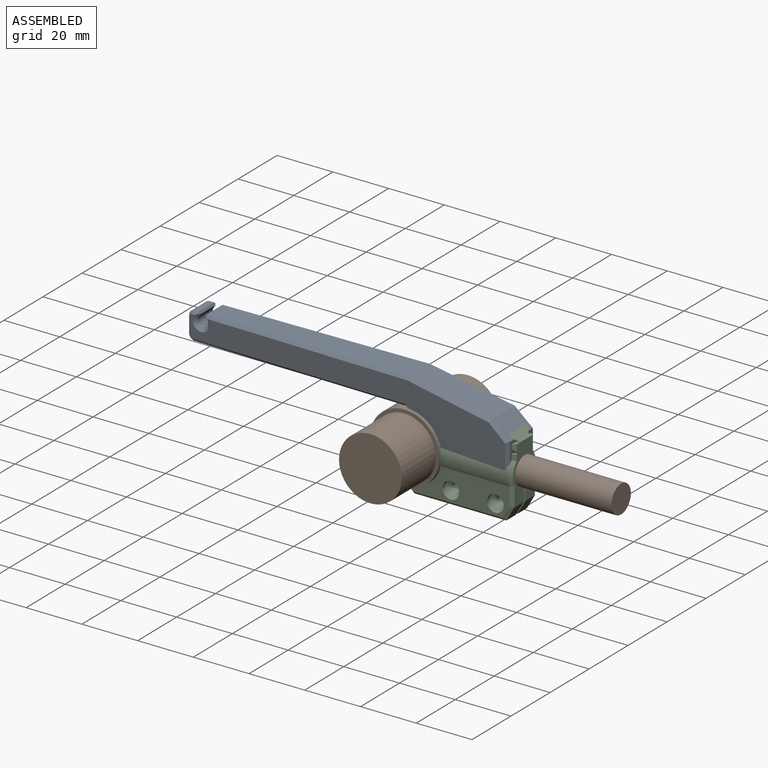
[diagram: assembled view]
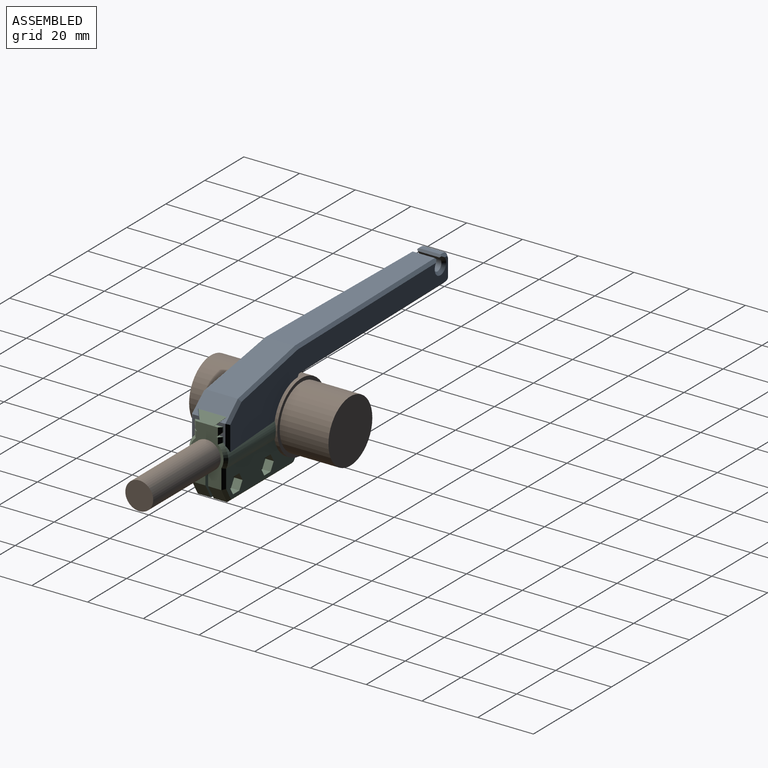
[diagram: assembled view, second angle]
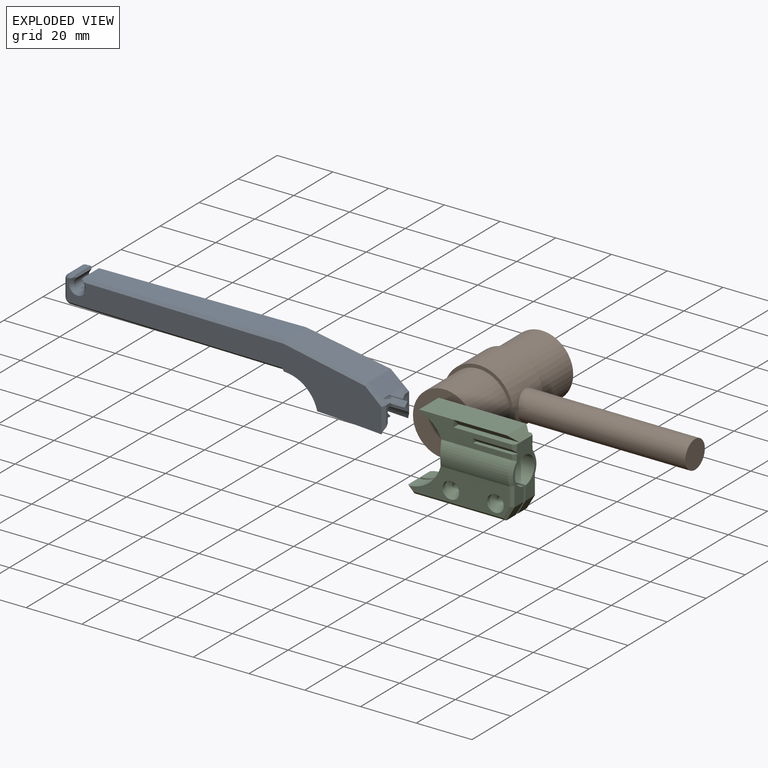
[diagram: exploded view]
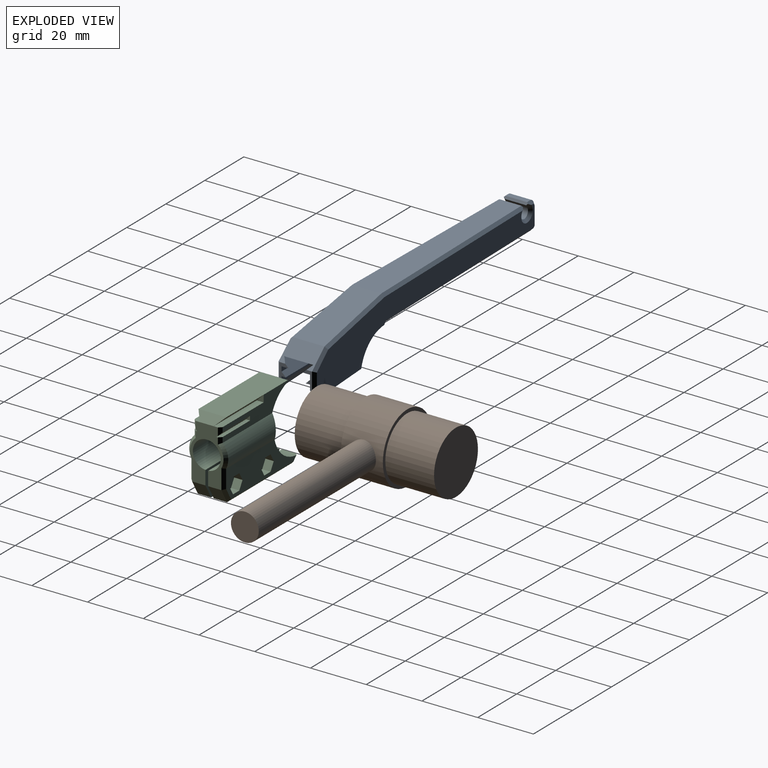
[diagram: exploded view, second angle]
ASSEMBLY  parts=3 mates=3
PART A: 65 faces, bbox 116.7x20.8x13.9 mm
  f0: plane 13.41x1.5mm, normal (0,1,0), area 20.1mm2, adj f1,f4,f21,f63
  f1: plane 13.41x1.5mm, normal (0,-0.71,0.71), area 28.5mm2, adj f0,f4,f21,f63
  f2: plane 13.41x1.5mm, normal (0,-0.71,-0.71), area 28.5mm2, adj f3,f12,f19,f64
  f3: plane 13.41x1.5mm, normal (0,1,0), area 20.1mm2, adj f2,f12,f19,f64
  f4: plane 36.5x7.66mm, normal (0,0,1), area 145.7mm2, adj f0,f1,f7,f11,f13,f14,f15,f16
  f5: plane 114.56x19.72mm, normal (-0.02,0,-1), area 1051.8mm2, adj f11,f13,f25,f47,f48,f49,f50,f51
  f6: plane 73.5x10.48mm, normal (0,-1,0), area 675.7mm2, adj f33,f34,f37,f38,f49,f50
  f7: plane 11.73x6.5mm, normal (0.66,-0.75,0), area 80.8mm2, adj f4,f12,f15,f16,f17,f19,f21,f34
  f8: plane 114.56x19.72mm, normal (-0.02,0,1), area 1051.8mm2, adj f10,f20,f24,f35,f36,f37,f38,f39
  f9: plane 7.81x1.5mm, normal (0,-1,0), area 11.7mm2, adj f27,f32,f42,f54
  f10: plane 1.14x0.01mm, normal (-1,0,0), area 0mm2, adj f8,f16,f19,f59,f62
  f11: plane 1.14x0.01mm, normal (-1,0,0), area 0mm2, adj f4,f5,f16,f60,f61
  f12: plane 7.19x3.26mm, normal (1,0,0), area 8.5mm2, adj f2,f3,f7,f17,f18,f19,f20,f35
  f13: cylinder r=7.1mm len=25.02mm, axis (-1,0,0), area 72.2mm2, adj f4,f5,f21,f25,f47
  f14: plane 20.4x2.5mm, normal (0,1,0), area 51mm2, adj f4,f15,f21,f23
  f15: plane 20.4x2.5mm, normal (0,-0.71,0.71), area 70.8mm2, adj f4,f7,f14,f21,f23
  f16: plane 112.89x12.46mm, normal (0,1,0), area 1067.5mm2, adj f4,f7,f10,f11,f19,f28,f46,f58
  f17: plane 20.4x2.5mm, normal (0,-0.71,-0.71), area 70.8mm2, adj f7,f12,f18,f19,f22
  f18: plane 20.4x2.5mm, normal (0,1,0), area 51mm2, adj f12,f17,f19,f22
  f19: plane 36.5x7.66mm, normal (0,0,-1), area 145.7mm2, adj f2,f3,f7,f10,f12,f16,f17,f18
  f20: cylinder r=7.1mm len=25.02mm, axis (-1,0,0), area 72.2mm2, adj f8,f12,f19,f24,f35
  f21: plane 7.19x3.26mm, normal (1,0,0), area 8.5mm2, adj f0,f1,f4,f7,f13,f14,f15,f47
  f22: plane 2.5x2.5mm, normal (-1,0,0), area 3.1mm2, adj f17,f18,f19
  f23: plane 2.5x2.5mm, normal (-1,0,0), area 3.1mm2, adj f4,f14,f15
  f24: cylinder r=12.5mm len=12.04mm, axis (0,0,-1), area 19.2mm2, adj f8,f19,f20,f62
  f25: cylinder r=12.5mm len=12.04mm, axis (0,0,-1), area 19.2mm2, adj f4,f5,f13,f61
  f26: plane 7.72x5.9mm, normal (-1,0,0), area 45.5mm2, adj f27,f28,f44,f56
  f27: cylinder r=2mm len=7.75mm, axis (0,0,1), area 24.3mm2, adj f9,f26,f43,f55
  f28: cylinder r=2mm len=7.75mm, axis (0,0,-1), area 24.3mm2, adj f16,f26,f45,f57
  f29: plane 7.95x0.97mm, normal (-0.84,0.55,0), area 9.2mm2, adj f31,f33,f39,f51
  f30: plane 7.79x0.97mm, normal (0.84,0.55,0), area 9mm2, adj f31,f32,f41,f53
  f31: cylinder r=2mm len=7.95mm, axis (0,0,-1), area 67.5mm2, adj f29,f30,f40,f52
  f32: plane 8.64x0.84mm, normal (0.88,-0.48,0), area 7.8mm2, adj f9,f30,f41,f42,f53,f54
  f33: plane 8.75x0.84mm, normal (-0.88,-0.48,0), area 8mm2, adj f6,f29,f38,f39,f50,f51
  f34: plane 30x11.52mm, normal (0.19,-0.98,0), area 335.6mm2, adj f6,f7,f36,f37,f48,f49
  f35: plane 9.55x1.2mm, normal (0.7,0,0.71), area 11.3mm2, adj f7,f8,f12,f20,f36
  f36: plane 6.96x6.11mm, normal (0.45,-0.54,0.71), area 11.7mm2, adj f7,f8,f34,f35,f37
  f37: plane 30.1x6.58mm, normal (0.12,-0.7,0.71), area 43mm2, adj f6,f8,f34,f36,f38
  f38: plane 73.71x2.28mm, normal (-0.01,-0.71,0.71), area 103.7mm2, adj f6,f8,f33,f37,f39
  f39: plane 1.45x1.38mm, normal (-0.6,0.38,0.7), area 1.4mm2, adj f8,f29,f33,f38,f40
  f40: bspline ~6.04x4.64mm, area 15.2mm2, adj f8,f31,f39,f41
  f41: plane 1.49x1.4mm, normal (0.58,0.39,0.71), area 1.5mm2, adj f8,f30,f32,f40,f42
  f42: plane 1.74x1.01mm, normal (-0.01,-0.71,0.71), area 1.9mm2, adj f8,f9,f32,f41,f43
  f43: bspline ~2x2mm, area 3.3mm2, adj f8,f27,f42,f44
  f44: plane 5.9x1mm, normal (-0.71,0,0.7), area 8.3mm2, adj f8,f26,f43,f45
  f45: bspline ~2x2mm, area 3.3mm2, adj f8,f28,f44,f46
  f46: plane 77.32x2.35mm, normal (-0.01,0.71,0.71), area 109.3mm2, adj f8,f16,f45,f59
  f47: plane 9.55x1.2mm, normal (0.7,0,-0.71), area 11.3mm2, adj f5,f7,f13,f21,f48
  f48: plane 6.96x6.11mm, normal (0.45,-0.54,-0.71), area 11.7mm2, adj f5,f7,f34,f47,f49
  f49: plane 30.1x6.58mm, normal (0.12,-0.7,-0.71), area 43mm2, adj f5,f6,f34,f48,f50
  f50: plane 73.71x2.28mm, normal (-0.01,-0.71,-0.71), area 103.7mm2, adj f5,f6,f33,f49,f51
  f51: plane 1.45x1.38mm, normal (-0.6,0.38,-0.7), area 1.4mm2, adj f5,f29,f33,f50,f52
  f52: bspline ~6.04x4.64mm, area 15.2mm2, adj f5,f31,f51,f53
  f53: plane 1.49x1.4mm, normal (0.58,0.39,-0.71), area 1.5mm2, adj f5,f30,f32,f52,f54
  f54: plane 1.74x1.01mm, normal (-0.01,-0.71,-0.71), area 1.9mm2, adj f5,f9,f32,f53,f55
  f55: bspline ~2x2mm, area 3.3mm2, adj f5,f27,f54,f56
  f56: plane 5.9x1mm, normal (-0.71,0,-0.7), area 8.3mm2, adj f5,f26,f55,f57
  f57: bspline ~2x2mm, area 3.3mm2, adj f5,f28,f56,f58
  f58: plane 77.32x2.35mm, normal (-0.01,0.71,-0.71), area 109.3mm2, adj f5,f16,f57,f60
  f59: plane 1.01x1mm, normal (-0.71,0.5,0.5), area 0.7mm2, adj f8,f10,f16,f46
  f60: plane 1.01x1mm, normal (-0.71,0.5,-0.5), area 0.7mm2, adj f5,f11,f16,f58
  f61: plane 1.14x0.1mm, normal (-0.71,0.7,0), area 0.2mm2, adj f4,f5,f11,f25
  f62: plane 1.14x0.1mm, normal (-0.71,0.7,0), area 0.2mm2, adj f8,f10,f19,f24
  f63: plane 1.5x1.5mm, normal (-1,0,0), area 1.1mm2, adj f0,f1,f4
  f64: plane 1.5x1.5mm, normal (-1,0,0), area 1.1mm2, adj f2,f3,f19
PART B: 9 faces, bbox 85x25x50 mm
  f0: cylinder r=12.5mm len=25mm, axis (0,0,-1), area 1097.8mm2, adj f1,f2,f7
  f1: plane 25x25mm, normal (0,0,1), area 93.3mm2, adj f0,f5
  f2: plane 25x25mm, normal (0,0,-1), area 93.3mm2, adj f0,f4
  f3: plane 22.5x22.5mm, normal (0,0,-1), area 397.6mm2, adj f4
  f4: cylinder r=11.25mm len=22.5mm, axis (0,0,-1), area 1237mm2, adj f2,f3
  f5: cylinder r=11.25mm len=22.5mm, axis (0,0,-1), area 1237mm2, adj f1,f6
  f6: plane 22.5x22.5mm, normal (0,0,1), area 397.6mm2, adj f5
  f7: cylinder r=5mm len=61.04mm, axis (-1,0,0), area 1901.2mm2, adj f0,f8
  f8: plane 10x10mm, normal (1,0,0), area 78.5mm2, adj f7
PART C: 70 faces, bbox 37.9x27.5x14 mm
  f0: plane 20x12mm, normal (1,0,0), area 116.5mm2, adj f2,f3,f4,f11,f18,f22,f25,f29
  f1: plane 33.39x7.6mm, normal (0,0,1), area 143.2mm2, adj f2,f13,f16,f21,f25,f27,f31,f57
  f2: plane 2.35x1.03mm, normal (0.71,0,0.71), area 3mm2, adj f0,f1,f58,f68
  f3: plane 2.7x1mm, normal (0.71,0,-0.71), area 3.1mm2, adj f0,f15,f29,f64
  f4: plane 2.35x1.03mm, normal (0.71,0,-0.71), area 3mm2, adj f0,f15,f63,f65
  f5: cylinder r=1.6mm len=3.2mm, axis (0,0,-1), area 28.7mm2, adj f34,f52
  f6: cylinder r=1.6mm len=3.2mm, axis (0,0,-1), area 28.7mm2, adj f34,f51
  f7: cylinder r=1.6mm len=3.2mm, axis (0,0,-1), area 27.6mm2, adj f32,f48
  f8: cylinder r=1.6mm len=3.2mm, axis (0,0,-1), area 27.6mm2, adj f32,f41
  f9: plane 33x4.75mm, normal (0,1,0), area 156.8mm2, adj f22,f24,f34,f60
  f10: plane 5.1x0.5mm, normal (-1,0,0), area 2.5mm2, adj f12,f13,f32,f53
  f11: plane 5x4.75mm, normal (0.87,0.5,0), area 27.4mm2, adj f0,f23,f32,f55
  f12: plane 4.75x2mm, normal (-0.71,0.71,0), area 13.4mm2, adj f10,f23,f32,f53
  f13: cylinder r=12.5mm len=24.5mm, axis (0,0,-1), area 328.1mm2, adj f1,f10,f14,f15,f16,f17,f19,f20
  f14: plane 5.1x0.5mm, normal (-1,0,0), area 2.5mm2, adj f13,f24,f34,f59
  f15: plane 33.39x7.6mm, normal (0,0,-1), area 143.2mm2, adj f3,f4,f13,f17,f21,f29,f30,f31
  f16: cylinder r=7mm len=25.39mm, axis (1,0,0), area 214.5mm2, adj f1,f13,f20,f58
  f17: cylinder r=7mm len=25.39mm, axis (1,0,0), area 214.5mm2, adj f13,f15,f19,f63
  f18: plane 10x2.89mm, normal (0.65,-0.76,0), area 28.6mm2, adj f0,f21,f26,f28
  f19: plane 36x10.85mm, normal (0,0,-1), area 252.1mm2, adj f13,f17,f49,f50,f59,f60,f61,f62
  f20: plane 36x10.85mm, normal (0,0,1), area 253.7mm2, adj f13,f16,f35,f36,f37,f38,f39,f40
  f21: plane 31.5x10mm, normal (0,-1,0), area 315mm2, adj f1,f15,f18,f26,f28,f31
  f22: plane 5x4.75mm, normal (0.87,0.5,0), area 27.4mm2, adj f0,f9,f34,f61
  f23: plane 33x4.75mm, normal (0,1,0), area 156.8mm2, adj f11,f12,f32,f54
  f24: plane 4.75x2mm, normal (-0.71,0.71,0), area 13.4mm2, adj f9,f14,f34,f59
  f25: plane 22x2.5mm, normal (0,-1,0), area 54.5mm2, adj f0,f1,f26,f27,f57
  f26: plane 22x2.5mm, normal (0,0.71,0.71), area 72.7mm2, adj f18,f21,f25,f27
  f27: plane 2.5x2.5mm, normal (1,0,0), area 3.1mm2, adj f1,f25,f26
  f28: plane 22x2.5mm, normal (0,0.71,-0.71), area 72.7mm2, adj f18,f21,f29,f30
  f29: plane 22x2.5mm, normal (0,-1,0), area 54.5mm2, adj f0,f3,f15,f28,f30
  f30: plane 2.5x2.5mm, normal (1,0,0), area 3.1mm2, adj f15,f28,f29
  f31: plane 10x0.5mm, normal (-1,0,0), area 5mm2, adj f1,f13,f15,f21
  f32: plane 37.89x10.03mm, normal (0,0,-1), area 292.3mm2, adj f0,f7,f8,f10,f11,f12,f13,f23
  f33: cylinder r=5mm len=26.43mm, axis (1,0,0), area 787.3mm2, adj f0,f13,f32,f34
  f34: plane 37.89x10.03mm, normal (0,0,1), area 292.3mm2, adj f0,f5,f6,f9,f13,f14,f22,f24
  f35: plane 3.25x3mm, normal (0,1,0), area 9.8mm2, adj f20,f36,f40,f41
  f36: plane 3x2.81mm, normal (-0.87,0.5,0), area 9.8mm2, adj f20,f35,f37,f41
  f37: plane 3x2.81mm, normal (-0.87,-0.5,0), area 9.8mm2, adj f20,f36,f38,f41
  f38: plane 3.25x3mm, normal (0,-1,0), area 9.8mm2, adj f20,f37,f39,f41
  f39: plane 3x2.81mm, normal (0.87,-0.5,0), area 9.8mm2, adj f20,f38,f40,f41
  f40: plane 3x2.81mm, normal (0.87,0.5,0), area 9.8mm2, adj f20,f35,f39,f41
  f41: plane 6.5x5.63mm, normal (0,0,1), area 19.4mm2, adj f8,f35,f36,f37,f38,f39,f40
  f42: plane 3.25x3mm, normal (0,1,0), area 9.8mm2, adj f20,f43,f47,f48
  f43: plane 3x2.81mm, normal (-0.87,0.5,0), area 9.8mm2, adj f20,f42,f44,f48
  f44: plane 3x2.81mm, normal (-0.87,-0.5,0), area 9.8mm2, adj f20,f43,f45,f48
  f45: plane 3.25x3mm, normal (0,-1,0), area 9.8mm2, adj f20,f44,f46,f48
  f46: plane 3x2.81mm, normal (0.87,-0.5,0), area 9.8mm2, adj f20,f45,f47,f48
  f47: plane 3x2.81mm, normal (0.87,0.5,0), area 9.8mm2, adj f20,f42,f46,f48
  f48: plane 6.5x5.63mm, normal (0,0,1), area 19.4mm2, adj f7,f42,f43,f44,f45,f46,f47
  f49: cylinder r=3mm len=6mm, axis (0,0,-1), area 28.3mm2, adj f19,f51
  f50: cylinder r=3mm len=6mm, axis (0,0,-1), area 28.3mm2, adj f19,f52
  f51: cone r=3mm half-angle=45deg, axis (0,0,-1), area 28.6mm2, adj f6,f49
  f52: cone r=3mm half-angle=45deg, axis (0,0,-1), area 28.6mm2, adj f5,f50
  f53: plane 2.54x2.42mm, normal (-0.5,0.5,0.71), area 3.8mm2, adj f10,f12,f13,f20,f54
  f54: plane 33x1mm, normal (0,0.71,0.71), area 46mm2, adj f20,f23,f53,f55
  f55: plane 5.27x3.46mm, normal (0.61,0.35,0.71), area 7.6mm2, adj f11,f20,f54,f56
  f56: plane 7.11x1.01mm, normal (0.71,0,0.71), area 9.7mm2, adj f0,f20,f55,f58
  f57: plane 2.7x1mm, normal (0.71,0,0.71), area 3.1mm2, adj f0,f1,f25,f67
  f58: cone r=6mm half-angle=45deg, axis (-1,0,0), area 11.9mm2, adj f0,f2,f16,f56
  f59: plane 2.54x2.42mm, normal (-0.5,0.5,-0.71), area 3.8mm2, adj f13,f14,f19,f24,f60
  f60: plane 33x1mm, normal (0,0.71,-0.71), area 46mm2, adj f9,f19,f59,f61
  f61: plane 5.27x3.46mm, normal (0.61,0.35,-0.71), area 7.6mm2, adj f19,f22,f60,f62
  f62: plane 7.11x1.01mm, normal (0.71,0,-0.71), area 9.7mm2, adj f0,f19,f61,f63
  f63: cone r=6mm half-angle=45deg, axis (-1,0,0), area 11.9mm2, adj f0,f4,f17,f62
  f64: plane 15x1.5mm, normal (0,0.71,-0.71), area 31.1mm2, adj f0,f3,f15,f65,f66
  f65: plane 15x1.5mm, normal (0,-1,0), area 22mm2, adj f0,f4,f15,f64,f66
  f66: plane 1.5x1.5mm, normal (1,0,0), area 1.1mm2, adj f15,f64,f65
  f67: plane 15x1.5mm, normal (0,0.71,0.71), area 31.1mm2, adj f0,f1,f57,f68,f69
  f68: plane 15x1.5mm, normal (0,-1,0), area 22mm2, adj f0,f1,f2,f67,f69
  f69: plane 1.5x1.5mm, normal (1,0,0), area 1.1mm2, adj f1,f67,f68
PLACE A rot(axis=(-1,0,0),90deg) t=(-110.87,51.55,26.37)mm
PLACE B rot(axis=(1,0,0),90deg) t=(-111.07,51.55,26.37)mm
PLACE C rot(axis=(-1,0,0),90deg) t=(-111.07,51.55,26.37)mm
MATE slider C.f13 <-> B.f0  axis (0,-1,0) through (-111.07,51.55,26.37)mm
MATE slider A.f20 <-> C.f16  axis (-1,0,0) through (-86.96,51.55,26.37)mm
MATE slider C.f33 <-> B.f7  axis (1,0,0) through (-99.79,51.55,26.37)mm
